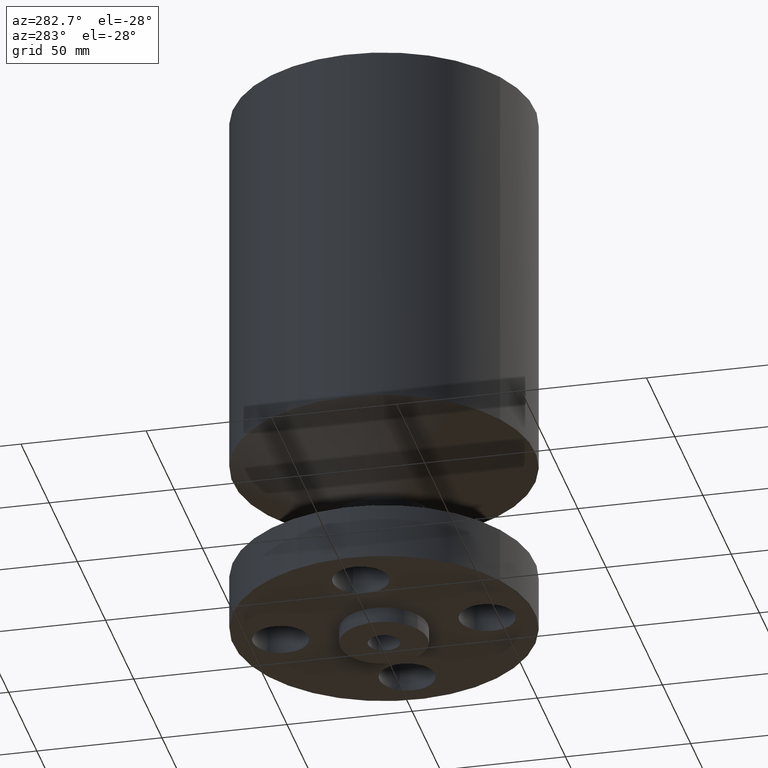
[diagram: clean part render]
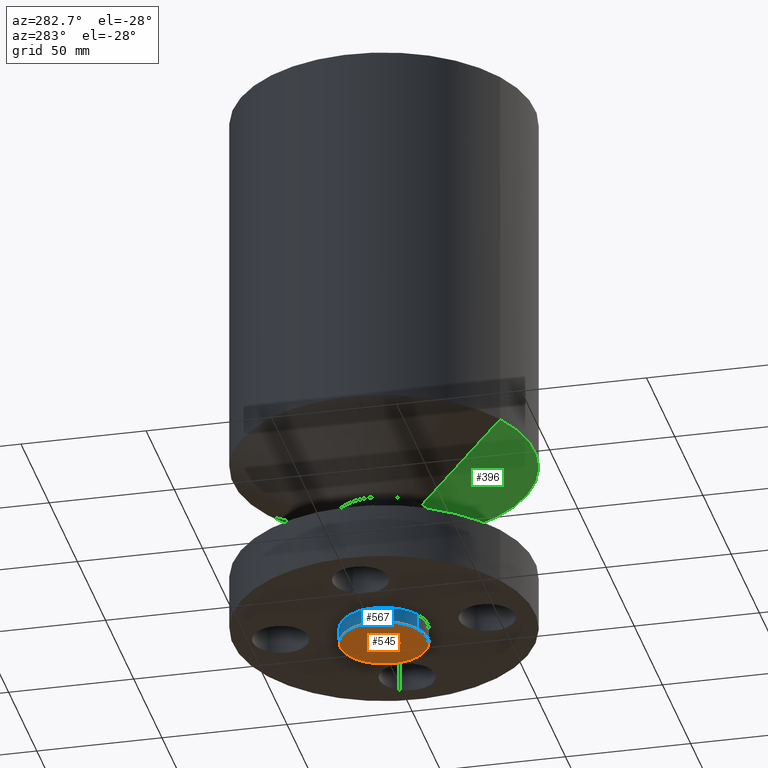
[diagram: same view with three faces highlighted in distinct colors, each labeled with its STEP entity id]
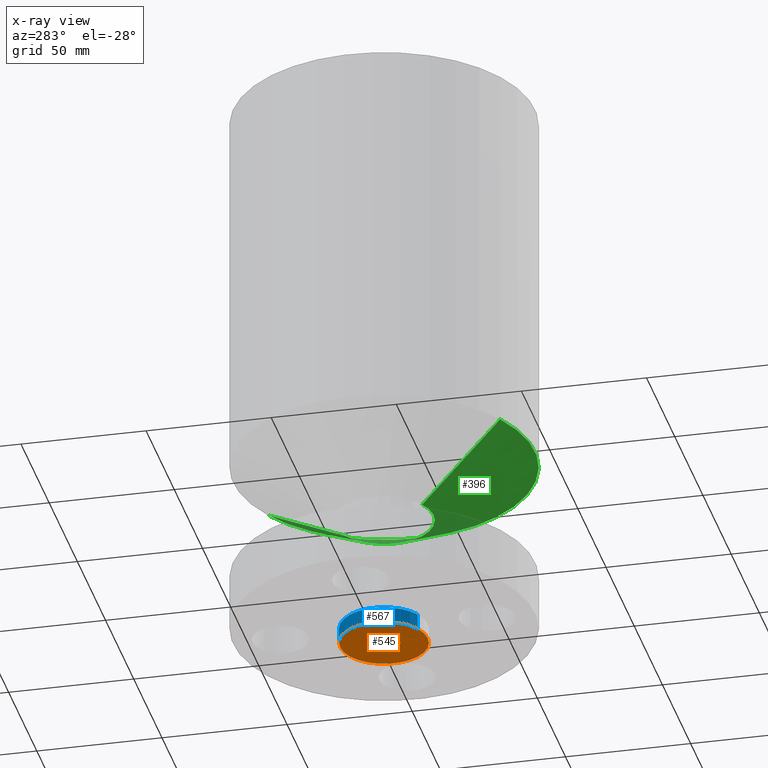
[diagram: x-ray of the same camera — body ghosted, the three highlighted faces saturated]
A machine part, auxiliary view with three faces highlighted in distinct colors.
The next image is the same camera in x-ray (body ghosted, the three faces saturated) — at least one of them is partly hidden behind the body in this view.
Their STEP definitions:

[orange] entity #545 — the highlighted planar face has unit normal (0, 0, -1).
#489=AXIS2_PLACEMENT_3D('Circle Axis2P3D',#487,#488,$) ;
#508=AXIS2_PLACEMENT_3D('Circle Axis2P3D',#506,#507,$) ;
#521=AXIS2_PLACEMENT_3D('Plane Axis2P3D',#518,#519,#520) ;
#525=AXIS2_PLACEMENT_3D('Circle Axis2P3D',#523,#524,$) ;
#534=AXIS2_PLACEMENT_3D('Circle Axis2P3D',#532,#533,$) ;
#484=CARTESIAN_POINT('Vertex',(0.119856384652,0.219395640473,-0.250000000001)) ;
#487=CARTESIAN_POINT('Axis2P3D Location',(0.,0.,-0.250000000001)) ;
#491=CARTESIAN_POINT('Vertex',(-0.119856384652,-0.219395640473,-0.250000000001)) ;
#506=CARTESIAN_POINT('Axis2P3D Location',(0.,0.,-0.250000000001)) ;
#518=CARTESIAN_POINT('Axis2P3D Location',(0.,0.250000000001,-0.250000000001)) ;
#523=CARTESIAN_POINT('Axis2P3D Location',(0.,0.,-0.250000000001)) ;
#527=CARTESIAN_POINT('Vertex',(-0.330803621638,-0.605531967707,-0.250000000001)) ;
#529=CARTESIAN_POINT('Vertex',(0.330803621638,0.605531967707,-0.250000000001)) ;
#532=CARTESIAN_POINT('Axis2P3D Location',(0.,0.,-0.250000000001)) ;
#488=DIRECTION('Axis2P3D Direction',(0.,0.,-0.0393700787402)) ;
#507=DIRECTION('Axis2P3D Direction',(0.,0.,-0.0393700787402)) ;
#519=DIRECTION('Axis2P3D Direction',(0.,0.,-0.0393700787402)) ;
#520=DIRECTION('Axis2P3D XDirection',(0.0393700787402,0.,0.)) ;
#524=DIRECTION('Axis2P3D Direction',(0.,0.,-0.0393700787402)) ;
#533=DIRECTION('Axis2P3D Direction',(0.,0.,-0.0393700787402)) ;
#538=ORIENTED_EDGE('',*,*,#531,.T.) ;
#539=ORIENTED_EDGE('',*,*,#536,.T.) ;
#542=ORIENTED_EDGE('',*,*,#493,.F.) ;
#543=ORIENTED_EDGE('',*,*,#510,.F.) ;
#544=FACE_BOUND('',#541,.T.) ;
#545=ADVANCED_FACE('PartBody',(#540,#544),#522,.T.) ;
#490=CIRCLE('generated circle',#489,0.250000000001) ;
#509=CIRCLE('generated circle',#508,0.250000000001) ;
#526=CIRCLE('generated circle',#525,0.690000000003) ;
#535=CIRCLE('generated circle',#534,0.690000000003) ;
#493=EDGE_CURVE('',#485,#492,#490,.T.) ;
#510=EDGE_CURVE('',#492,#485,#509,.T.) ;
#531=EDGE_CURVE('',#528,#530,#526,.T.) ;
#536=EDGE_CURVE('',#530,#528,#535,.T.) ;
#537=EDGE_LOOP('',(#538,#539)) ;
#541=EDGE_LOOP('',(#542,#543)) ;
#540=FACE_OUTER_BOUND('',#537,.T.) ;
#522=PLANE('',#521) ;
#485=VERTEX_POINT('',#484) ;
#492=VERTEX_POINT('',#491) ;
#528=VERTEX_POINT('',#527) ;
#530=VERTEX_POINT('',#529) ;

[blue] entity #567 — the highlighted cylindrical surface (partial cylindrical patch) has radius 17.526 mm, axis along (0, 0, -1).
#118=AXIS2_PLACEMENT_3D('Circle Axis2P3D',#116,#117,$) ;
#525=AXIS2_PLACEMENT_3D('Circle Axis2P3D',#523,#524,$) ;
#549=AXIS2_PLACEMENT_3D('Cylinder Axis2P3D',#546,#547,#548) ;
#111=CARTESIAN_POINT('Vertex',(0.330803621638,0.605531967707,0.)) ;
#113=CARTESIAN_POINT('Vertex',(-0.330803621638,-0.605531967707,0.)) ;
#116=CARTESIAN_POINT('Axis2P3D Location',(0.,0.,0.)) ;
#523=CARTESIAN_POINT('Axis2P3D Location',(0.,0.,-0.250000000001)) ;
#527=CARTESIAN_POINT('Vertex',(-0.330803621638,-0.605531967707,-0.250000000001)) ;
#529=CARTESIAN_POINT('Vertex',(0.330803621638,0.605531967707,-0.250000000001)) ;
#546=CARTESIAN_POINT('Axis2P3D Location',(0.,0.,4.25000000002)) ;
#551=CARTESIAN_POINT('Line Origine',(-0.330803621638,-0.605531967707,-0.125000000001)) ;
#556=CARTESIAN_POINT('Line Origine',(0.330803621638,0.605531967707,-0.125000000001)) ;
#117=DIRECTION('Axis2P3D Direction',(0.,0.,-0.0393700787402)) ;
#524=DIRECTION('Axis2P3D Direction',(0.,0.,-0.0393700787402)) ;
#547=DIRECTION('Axis2P3D Direction',(0.,0.,-0.0393700787402)) ;
#548=DIRECTION('Axis2P3D XDirection',(0.0188750212049,0.0345504945626,0.)) ;
#552=DIRECTION('Vector Direction',(0.,0.,-0.0393700787402)) ;
#557=DIRECTION('Vector Direction',(0.,0.,-0.0393700787402)) ;
#553=VECTOR('Line Direction',#552,0.0393700787402) ;
#558=VECTOR('Line Direction',#557,0.0393700787402) ;
#562=ORIENTED_EDGE('',*,*,#531,.F.) ;
#563=ORIENTED_EDGE('',*,*,#555,.T.) ;
#564=ORIENTED_EDGE('',*,*,#120,.T.) ;
#565=ORIENTED_EDGE('',*,*,#560,.F.) ;
#567=ADVANCED_FACE('PartBody',(#566),#550,.T.) ;
#119=CIRCLE('generated circle',#118,0.690000000003) ;
#526=CIRCLE('generated circle',#525,0.690000000003) ;
#550=CYLINDRICAL_SURFACE('generated cylinder',#549,0.690000000003) ;
#120=EDGE_CURVE('',#114,#112,#119,.T.) ;
#531=EDGE_CURVE('',#528,#530,#526,.T.) ;
#555=EDGE_CURVE('',#528,#114,#554,.F.) ;
#560=EDGE_CURVE('',#530,#112,#559,.F.) ;
#561=EDGE_LOOP('',(#562,#563,#564,#565)) ;
#566=FACE_OUTER_BOUND('',#561,.T.) ;
#554=LINE('Line',#551,#553) ;
#559=LINE('Line',#556,#558) ;
#112=VERTEX_POINT('',#111) ;
#114=VERTEX_POINT('',#113) ;
#528=VERTEX_POINT('',#527) ;
#530=VERTEX_POINT('',#529) ;

[green] entity #396 — the highlighted conical surface has half-angle 60 deg.
#337=AXIS2_PLACEMENT_3D('Circle Axis2P3D',#335,#336,$) ;
#369=AXIS2_PLACEMENT_3D('Cone Axis2P3D',#366,#367,#368) ;
#380=AXIS2_PLACEMENT_3D('Circle Axis2P3D',#378,#379,$) ;
#332=CARTESIAN_POINT('Vertex',(0.373951920113,0.684514398277,1.88000000001)) ;
#335=CARTESIAN_POINT('Axis2P3D Location',(0.,0.,1.88000000001)) ;
#339=CARTESIAN_POINT('Vertex',(-0.373951920113,-0.684514398277,1.88000000001)) ;
#366=CARTESIAN_POINT('Axis2P3D Location',(0.,0.,1.88000000001)) ;
#371=CARTESIAN_POINT('Line Origine',(0.756293787151,1.38438649139,2.34043683969)) ;
#375=CARTESIAN_POINT('Vertex',(1.13863565419,2.0842585845,2.80087367937)) ;
#378=CARTESIAN_POINT('Axis2P3D Location',(0.,0.,2.80087367937)) ;
#382=CARTESIAN_POINT('Vertex',(-1.13863565419,-2.0842585845,2.80087367937)) ;
#385=CARTESIAN_POINT('Line Origine',(-0.756293787151,-1.38438649139,2.34043683969)) ;
#336=DIRECTION('Axis2P3D Direction',(0.,0.,-0.0393700787402)) ;
#367=DIRECTION('Axis2P3D Direction',(-0.,-0.,0.0393700787402)) ;
#368=DIRECTION('Axis2P3D XDirection',(0.0188750212049,0.0345504945626,0.)) ;
#372=DIRECTION('Vector Direction',(0.0163462478604,0.0299216060045,0.0196850393701)) ;
#379=DIRECTION('Axis2P3D Direction',(-0.,0.,0.0393700787402)) ;
#386=DIRECTION('Vector Direction',(-0.0163462478604,-0.0299216060045,0.0196850393701)) ;
#373=VECTOR('Line Direction',#372,0.0393700787402) ;
#387=VECTOR('Line Direction',#386,0.0393700787402) ;
#391=ORIENTED_EDGE('',*,*,#341,.F.) ;
#392=ORIENTED_EDGE('',*,*,#377,.T.) ;
#393=ORIENTED_EDGE('',*,*,#384,.T.) ;
#394=ORIENTED_EDGE('',*,*,#389,.F.) ;
#396=ADVANCED_FACE('PartBody',(#395),#370,.T.) ;
#338=CIRCLE('generated circle',#337,0.780000000003) ;
#381=CIRCLE('generated circle',#380,2.37500000001) ;
#370=CONICAL_SURFACE('Cone',#369,0.780000000003,1.0471975512) ;
#341=EDGE_CURVE('',#333,#340,#338,.T.) ;
#377=EDGE_CURVE('',#333,#376,#374,.T.) ;
#384=EDGE_CURVE('',#376,#383,#381,.F.) ;
#389=EDGE_CURVE('',#340,#383,#388,.T.) ;
#390=EDGE_LOOP('',(#391,#392,#393,#394)) ;
#395=FACE_OUTER_BOUND('',#390,.T.) ;
#374=LINE('Line',#371,#373) ;
#388=LINE('Line',#385,#387) ;
#333=VERTEX_POINT('',#332) ;
#340=VERTEX_POINT('',#339) ;
#376=VERTEX_POINT('',#375) ;
#383=VERTEX_POINT('',#382) ;